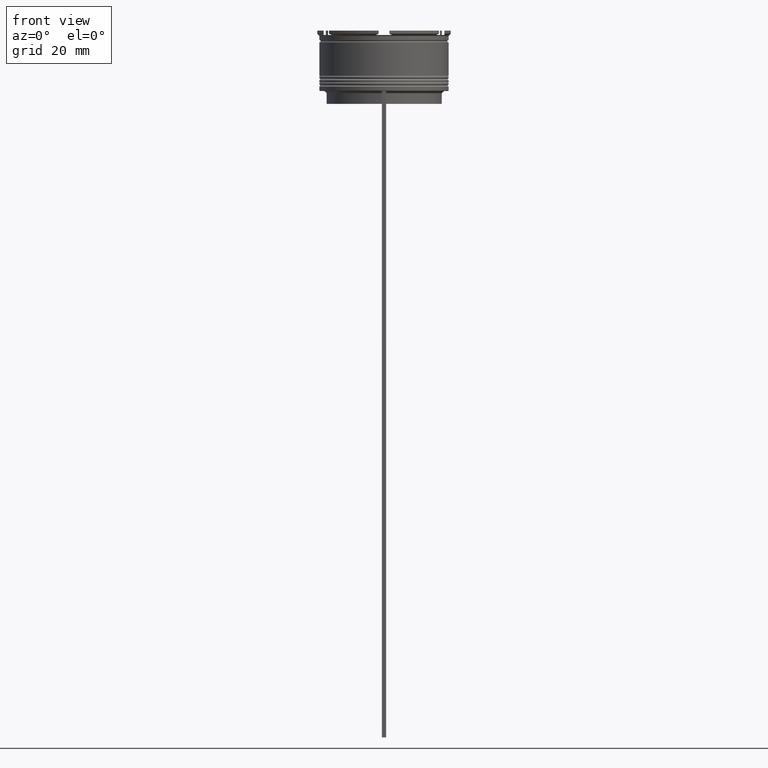
[diagram: clean part render]
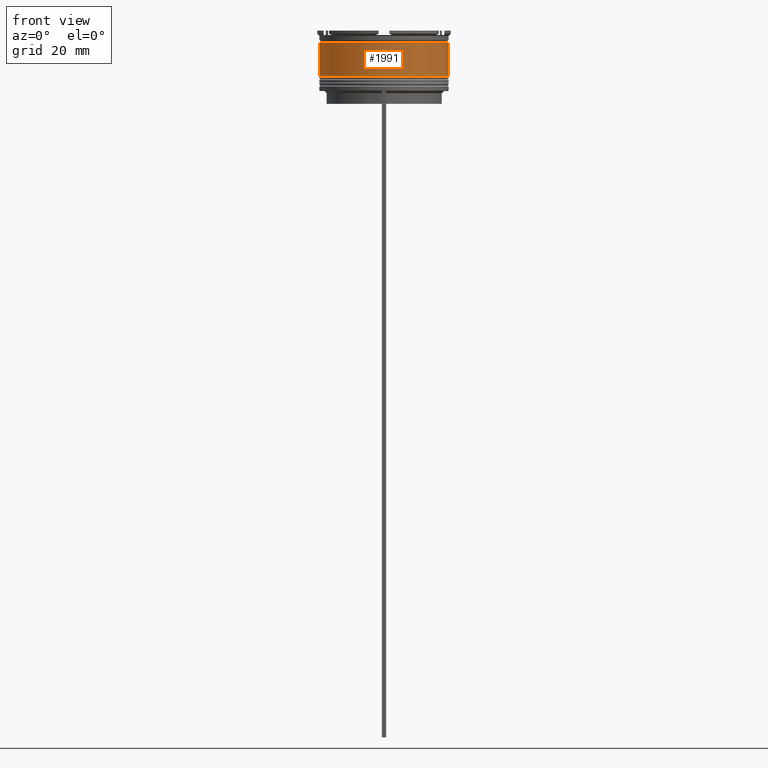
[diagram: same view with one face highlighted and labeled with its STEP entity id]
A machine part, front view. The second image highlights one B-rep face of the part: STEP entity #1991.
In plain terms, the highlighted cylindrical surface (partial cylindrical patch) has radius 15 mm, axis along (-0, -0, 1).
Its self-contained STEP definition (entity closure, byte-faithful):
#10 = VECTOR ( 'NONE', #1732, 1000.000000000000000 ) ;
#125 = VERTEX_POINT ( 'NONE', #1624 ) ;
#143 = CIRCLE ( 'NONE', #1263, 15.00000000000000178 ) ;
#200 = EDGE_LOOP ( 'NONE', ( #1710, #2485, #2766, #417 ) ) ;
#251 = CARTESIAN_POINT ( 'NONE',  ( 0.000000000000000000, 0.000000000000000000, -2.699999999999999734 ) ) ;
#417 = ORIENTED_EDGE ( 'NONE', *, *, #1796, .F. ) ;
#488 = CARTESIAN_POINT ( 'NONE',  ( 0.000000000000000000, 0.000000000000000000, -10.50000000000000178 ) ) ;
#496 = FACE_OUTER_BOUND ( 'NONE', #200, .T. ) ;
#707 = CARTESIAN_POINT ( 'NONE',  ( 14.99999999999999822, 0.000000000000000000, -2.699999999999999734 ) ) ;
#923 = CARTESIAN_POINT ( 'NONE',  ( 15.00000000000000000, 0.000000000000000000, 0.000000000000000000 ) ) ;
#963 = CARTESIAN_POINT ( 'NONE',  ( 0.000000000000000000, 0.000000000000000000, 0.000000000000000000 ) ) ;
#1024 = AXIS2_PLACEMENT_3D ( 'NONE', #251, #2256, #2494 ) ;
#1263 = AXIS2_PLACEMENT_3D ( 'NONE', #488, #2054, #2444 ) ;
#1264 = LINE ( 'NONE', #2601, #10 ) ;
#1425 = DIRECTION ( 'NONE',  ( -0.000000000000000000, -0.000000000000000000, 1.000000000000000000 ) ) ;
#1594 = AXIS2_PLACEMENT_3D ( 'NONE', #963, #2263, #2293 ) ;
#1624 = CARTESIAN_POINT ( 'NONE',  ( -14.99999999999999822, 1.836970198721029194E-15, -2.699999999999999734 ) ) ;
#1710 = ORIENTED_EDGE ( 'NONE', *, *, #2158, .F. ) ;
#1732 = DIRECTION ( 'NONE',  ( -0.000000000000000000, -0.000000000000000000, 1.000000000000000000 ) ) ;
#1782 = CARTESIAN_POINT ( 'NONE',  ( -15.00000000000000355, 1.836970198721029983E-15, -10.50000000000000178 ) ) ;
#1783 = EDGE_CURVE ( 'NONE', #1807, #2824, #143, .T. ) ;
#1796 = EDGE_CURVE ( 'NONE', #125, #1935, #1870, .T. ) ;
#1807 = VERTEX_POINT ( 'NONE', #1782 ) ;
#1870 = CIRCLE ( 'NONE', #1024, 14.99999999999999822 ) ;
#1935 = VERTEX_POINT ( 'NONE', #707 ) ;
#1991 = ADVANCED_FACE ( 'NONE', ( #496 ), #2688, .T. ) ;
#2054 = DIRECTION ( 'NONE',  ( -0.000000000000000000, -0.000000000000000000, 1.000000000000000000 ) ) ;
#2090 = CARTESIAN_POINT ( 'NONE',  ( 15.00000000000000178, 0.000000000000000000, -10.50000000000000178 ) ) ;
#2158 = EDGE_CURVE ( 'NONE', #1807, #125, #1264, .T. ) ;
#2256 = DIRECTION ( 'NONE',  ( -0.000000000000000000, -0.000000000000000000, 1.000000000000000000 ) ) ;
#2263 = DIRECTION ( 'NONE',  ( -0.000000000000000000, -0.000000000000000000, 1.000000000000000000 ) ) ;
#2293 = DIRECTION ( 'NONE',  ( 1.000000000000000000, 0.000000000000000000, 0.000000000000000000 ) ) ;
#2306 = LINE ( 'NONE', #923, #2426 ) ;
#2356 = EDGE_CURVE ( 'NONE', #2824, #1935, #2306, .T. ) ;
#2426 = VECTOR ( 'NONE', #1425, 1000.000000000000000 ) ;
#2444 = DIRECTION ( 'NONE',  ( 1.000000000000000000, 0.000000000000000000, 0.000000000000000000 ) ) ;
#2485 = ORIENTED_EDGE ( 'NONE', *, *, #1783, .T. ) ;
#2494 = DIRECTION ( 'NONE',  ( 1.000000000000000000, 0.000000000000000000, 0.000000000000000000 ) ) ;
#2601 = CARTESIAN_POINT ( 'NONE',  ( -15.00000000000000000, 1.836970198721029589E-15, 0.000000000000000000 ) ) ;
#2688 = CYLINDRICAL_SURFACE ( 'NONE', #1594, 15.00000000000000000 ) ;
#2766 = ORIENTED_EDGE ( 'NONE', *, *, #2356, .T. ) ;
#2824 = VERTEX_POINT ( 'NONE', #2090 ) ;